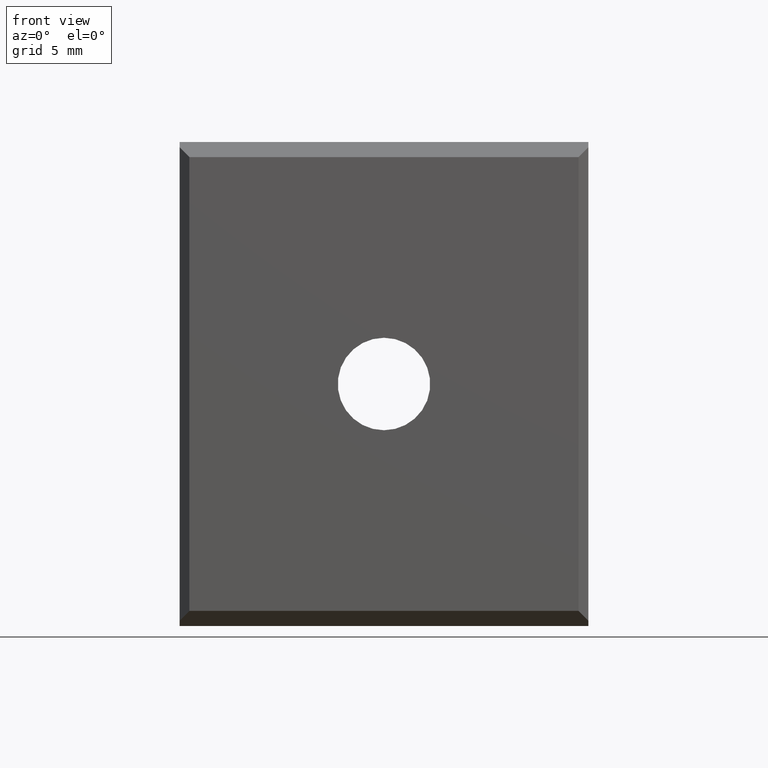
[diagram: clean part render]
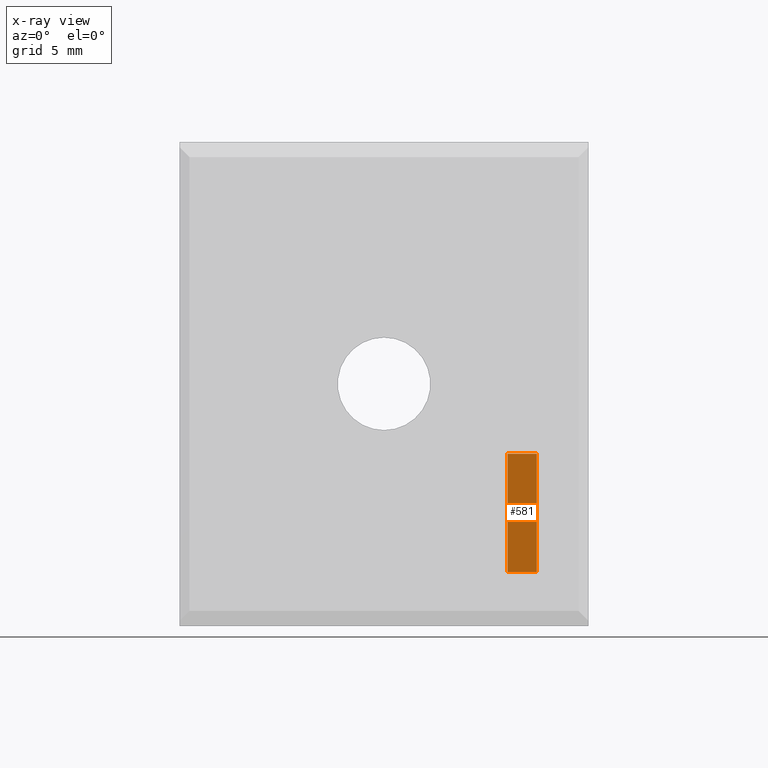
[diagram: x-ray — body ghosted, one internal face saturated and labeled with its STEP entity id]
A machine part, front view, then the same camera in x-ray: the body is ghosted and one INTERNAL B-rep face — a face not visible from any outside direction — is saturated and labeled: STEP entity #581.
In plain terms, the highlighted planar face has unit normal (0, 1, 0).
Its self-contained STEP definition (entity closure, byte-faithful):
#204 = EDGE_CURVE ( 'NONE', #4733, #4705, #3483, .T. ) ;
#212 = EDGE_CURVE ( 'NONE', #4825, #4733, #3516, .T. ) ;
#228 = EDGE_CURVE ( 'NONE', #4825, #4722, #1770, .T. ) ;
#232 = EDGE_CURVE ( 'NONE', #4722, #4705, #1767, .T. ) ;
#581 = ADVANCED_FACE ( 'NONE', ( #2252 ), #2271, .F. ) ;
#990 = AXIS2_PLACEMENT_3D ( 'NONE', #2247, #2263, #2251 ) ;
#1735 = CARTESIAN_POINT ( 'NONE',  ( -38.83735771704083100, 10.75000000000000000, -4.235539908429683600 ) ) ;
#1763 = DIRECTION ( 'NONE',  ( -1.000000000000000000, -0.0000000000000000000, 0.0000000000000000000 ) ) ;
#1767 = LINE ( 'NONE', #1773, #4620 ) ;
#1770 = LINE ( 'NONE', #1735, #4623 ) ;
#1773 = CARTESIAN_POINT ( 'NONE',  ( 5.212642282959048900, 10.75000000000000000, 1.264464329727498700 ) ) ;
#1774 = DIRECTION ( 'NONE',  ( 0.0000000000000000000, -0.0000000000000000000, 1.000000000000000000 ) ) ;
#2247 = CARTESIAN_POINT ( 'NONE',  ( -38.83735771704083100, 10.75000000000000000, 1.264464329727498700 ) ) ;
#2251 = DIRECTION ( 'NONE',  ( 0.0000000000000000000, -0.0000000000000000000, 1.000000000000000000 ) ) ;
#2252 = FACE_OUTER_BOUND ( 'NONE', #3898, .T. ) ;
#2263 = DIRECTION ( 'NONE',  ( 0.0000000000000000000, 1.000000000000000000, 0.0000000000000000000 ) ) ;
#2271 = PLANE ( 'NONE',  #990 ) ;
#2626 = CARTESIAN_POINT ( 'NONE',  ( 6.562642282959181700, 10.75000000000000000, 1.264464329727498700 ) ) ;
#2633 = CARTESIAN_POINT ( 'NONE',  ( 5.212642282959059500, 10.75000000000000000, 1.264464329727498700 ) ) ;
#2673 = CARTESIAN_POINT ( 'NONE',  ( 5.212642282959048900, 10.75000000000000000, -4.235539908429683600 ) ) ;
#2690 = CARTESIAN_POINT ( 'NONE',  ( 6.562642282959177300, 10.75000000000000000, -4.235539908429683600 ) ) ;
#3439 = CARTESIAN_POINT ( 'NONE',  ( -38.83735771704083100, 10.75000000000000000, 1.264464329727498700 ) ) ;
#3452 = DIRECTION ( 'NONE',  ( -1.000000000000000000, -0.0000000000000000000, -0.0000000000000000000 ) ) ;
#3483 = LINE ( 'NONE', #3439, #4590 ) ;
#3497 = CARTESIAN_POINT ( 'NONE',  ( 6.562642282959177300, 10.75000000000000000, -1.485560099885221900 ) ) ;
#3509 = DIRECTION ( 'NONE',  ( -0.0000000000000000000, -0.0000000000000000000, 1.000000000000000000 ) ) ;
#3516 = LINE ( 'NONE', #3497, #4602 ) ;
#3898 = EDGE_LOOP ( 'NONE', ( #5380, #5412, #5442, #5375 ) ) ;
#4590 = VECTOR ( 'NONE', #3452, 1000.000000000000000 ) ;
#4602 = VECTOR ( 'NONE', #3509, 1000.000000000000000 ) ;
#4620 = VECTOR ( 'NONE', #1774, 1000.000000000000000 ) ;
#4623 = VECTOR ( 'NONE', #1763, 1000.000000000000000 ) ;
#4705 = VERTEX_POINT ( 'NONE', #2633 ) ;
#4722 = VERTEX_POINT ( 'NONE', #2673 ) ;
#4733 = VERTEX_POINT ( 'NONE', #2626 ) ;
#4825 = VERTEX_POINT ( 'NONE', #2690 ) ;
#5375 = ORIENTED_EDGE ( 'NONE', *, *, #232, .F. ) ;
#5380 = ORIENTED_EDGE ( 'NONE', *, *, #228, .F. ) ;
#5412 = ORIENTED_EDGE ( 'NONE', *, *, #212, .T. ) ;
#5442 = ORIENTED_EDGE ( 'NONE', *, *, #204, .T. ) ;